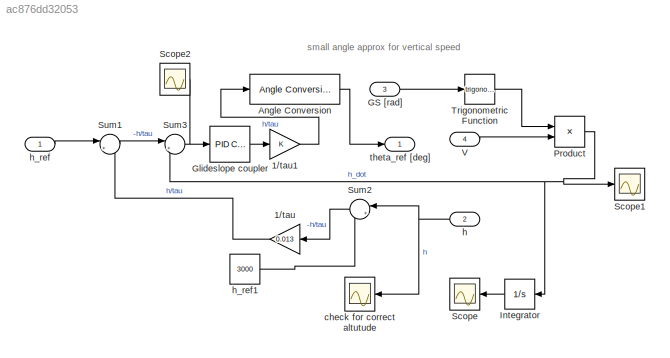
MODEL slx_ac876dd32053
KIND model
CONFIG AbsTol = auto
CONFIG EnableMultiTasking = off
CONFIG FixedStep = auto
CONFIG MaxStep = auto
CONFIG MinStep = auto
CONFIG RelTol = 1e-3
CONFIG SampleTimeConstraint = Unconstrained
CONFIG SolverName = VariableStepAuto
CONFIG StartTime = 0.0
CONFIG StopTime = 10.0
BLOCK [Gain] 1//tau
  Gain = 0.013
BLOCK [Gain] 1//tau1
BLOCK [Reference] Angle Conversion  REF=aerolibconvert2/Angle Conversion
  Ports = [1, 1]
  SourceBlock = aerolibconvert2/Angle Conversion
  SourceProductBaseCode = AE
  SourceType = Angle Conversion
BLOCK [Inport] GS [rad]
  Port = 3
BLOCK [Reference] Glideslope coupler  REF=pid_lib/PID Controller
  Ports = [1, 1]
  SourceBlock = pid_lib/PID Controller
  SourceProductBaseCode = SL
  SourceType = PID 1dof
BLOCK [Integrator] Integrator
  Ports = [1, 1]
BLOCK [Product] Product
  Ports = [2, 1]
BLOCK [Scope] Scope
  Floating = off
  NumInputPorts = 1
  Ports = [1]
  ScopeSpecificationString = Simulink.scopes.TimeScopeBlockCfg('CurrentConfiguration', extmgr.ConfigurationSet(extmgr.Configuration('Core','General UI',true),extmgr.Configuration('Core','Source UI',true),extmgr.Configuration('Sources','WiredSimulink',true,'DataLoggingVariableName','ScopeData1'),extmgr.Configuration('Visuals','Time Domain',true,'SerializedDisplays',{struct('MinYLimReal','-3124.49012','MaxYLimReal','-727.02354'...<+1437ch>
BLOCK [Scope] Scope1
  Floating = off
  NumInputPorts = 1
  Ports = [1]
  ScopeSpecificationString = Simulink.scopes.TimeScopeBlockCfg('CurrentConfiguration', extmgr.ConfigurationSet(extmgr.Configuration('Core','General UI',true),extmgr.Configuration('Core','Source UI',true),extmgr.Configuration('Sources','WiredSimulink',true,'DataLoggingVariableName','ScopeData2'),extmgr.Configuration('Visuals','Time Domain',true,'SerializedDisplays',{struct('MinYLimReal','-22.22235','MaxYLimReal','-2.6266','YLa...<+1387ch>
BLOCK [Scope] Scope2
  Floating = off
  NumInputPorts = 1
  Ports = [1]
  ScopeSpecificationString = Simulink.scopes.TimeScopeBlockCfg('CurrentConfiguration', extmgr.ConfigurationSet(extmgr.Configuration('Core','General UI',true),extmgr.Configuration('Core','Source UI',true),extmgr.Configuration('Sources','WiredSimulink',true,'DataLoggingVariableName','ScopeData1'),extmgr.Configuration('Visuals','Time Domain',true,'SerializedDisplays',{struct('MinYLimReal','-216.20847','MaxYLimReal','54.54755','Y...<+1419ch>
BLOCK [Sum] Sum1
  Inputs = |+-
  Ports = [2, 1]
BLOCK [Sum] Sum2
  Inputs = |+-
  Ports = [2, 1]
BLOCK [Sum] Sum3
  Inputs = |+-
  Ports = [2, 1]
BLOCK [Trigonometry] Trigonometric Function
  Ports = [1, 1]
BLOCK [Inport] V
  Port = 4
BLOCK [Scope] check for correct altutude
  Floating = off
  NumInputPorts = 1
  Ports = [1]
  ScopeSpecificationString = Simulink.scopes.TimeScopeBlockCfg('CurrentConfiguration', extmgr.ConfigurationSet(extmgr.Configuration('Core','General UI',true),extmgr.Configuration('Core','Source UI',true),extmgr.Configuration('Sources','WiredSimulink',true),extmgr.Configuration('Visuals','Time Domain',true,'SerializedDisplays',{struct('MinYLimReal','-629.11161','MaxYLimReal','5662.00447','YLabelReal','','MinYLimMag',' 0.00000'...<+1438ch>
BLOCK [Inport] h
  Port = 2
BLOCK [Inport] h_ref
BLOCK [Constant] h_ref1
  Value = 3000
BLOCK [Outport] theta_ref [deg]
ANNOTATION (root): small angle approx for vertical speed
LINE 1//tau1:1 -> Angle Conversion:1
LINE 1//tau:1 -> Sum1:2
LINE Angle Conversion:1 -> theta_ref [deg]:1
LINE GS [rad]:1 -> Trigonometric Function:1
LINE Glideslope coupler:1 -> 1//tau1:1
LINE Integrator:1 -> Scope:1
NET Product:1 -> Integrator:1, Scope1:1, Sum3:2
LINE Sum1:1 -> Sum3:1
LINE Sum2:1 -> 1//tau:1
NET Sum3:1 -> Glideslope coupler:1, Scope2:1
LINE Trigonometric Function:1 -> Product:1
LINE V:1 -> Product:2
NET h:1 -> Sum2:1, check for correct altutude:1
LINE h_ref1:1 -> Sum2:2
LINE h_ref:1 -> Sum1:1
note: NET lines group one-source signal fan-out (src -> all destinations, sorted); 1:1 wires keep LINE
